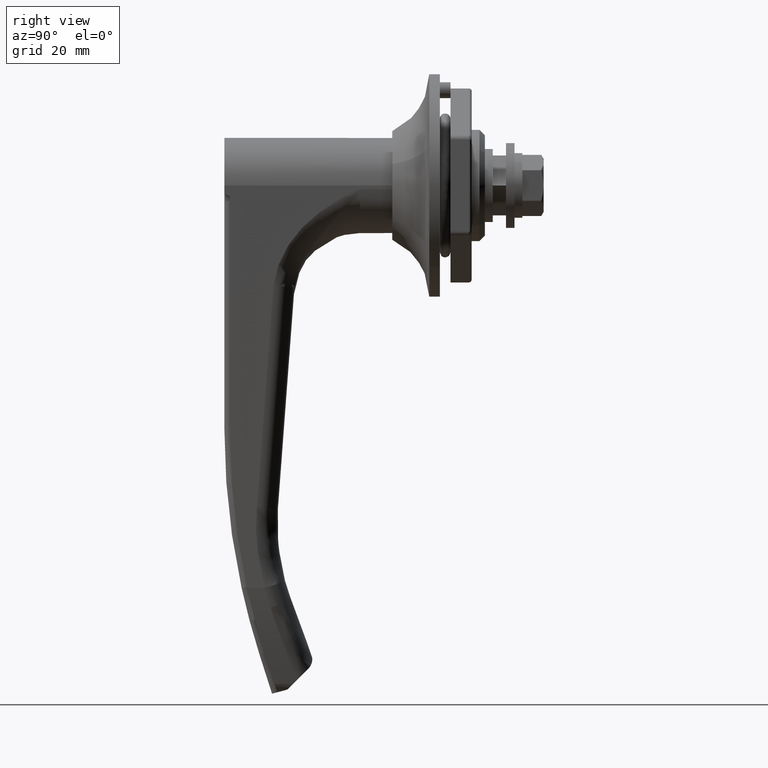
[diagram: clean part render]
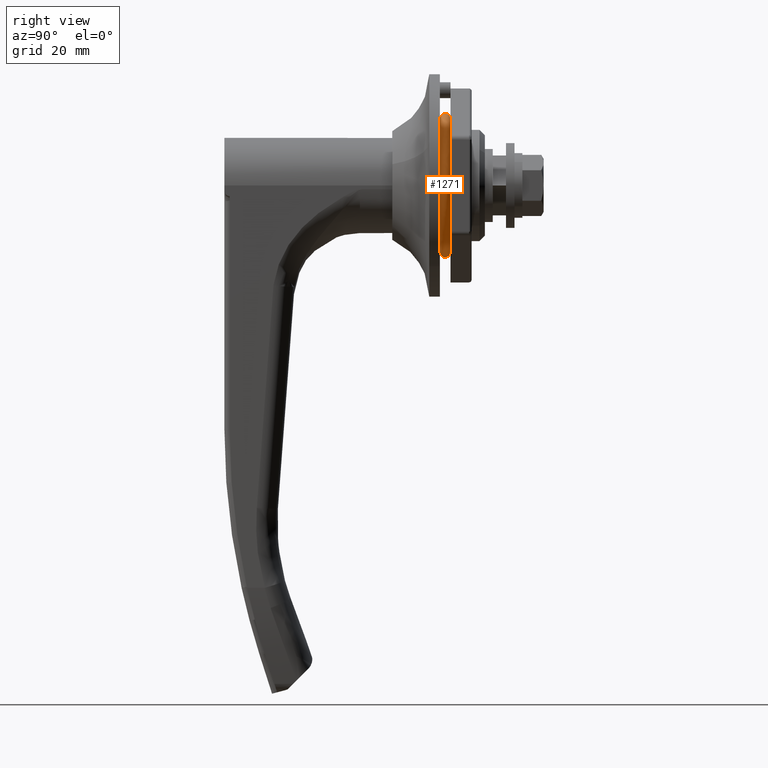
[diagram: same view with one face highlighted and labeled with its STEP entity id]
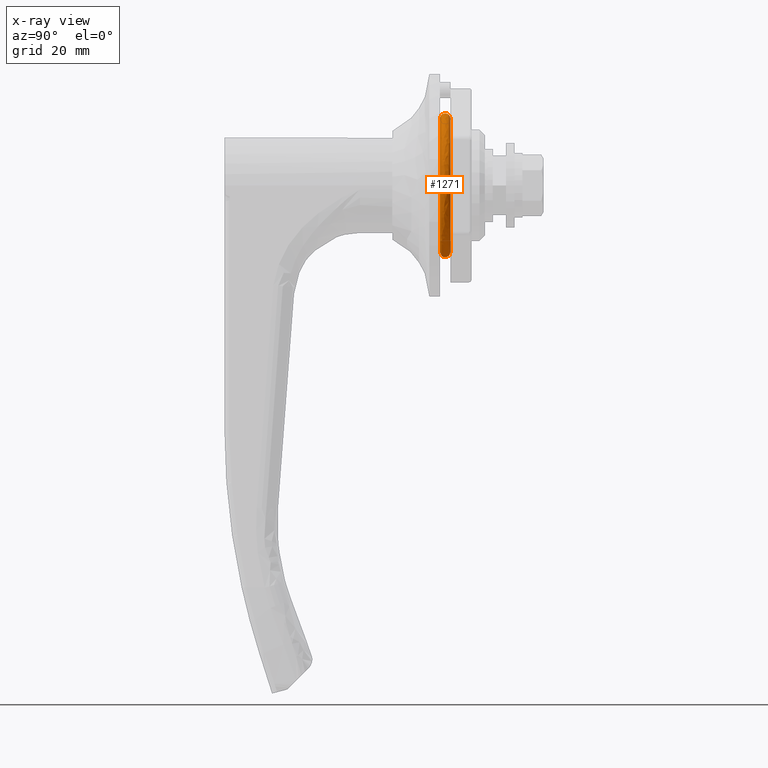
[diagram: x-ray of the same camera — body ghosted, the highlighted face saturated]
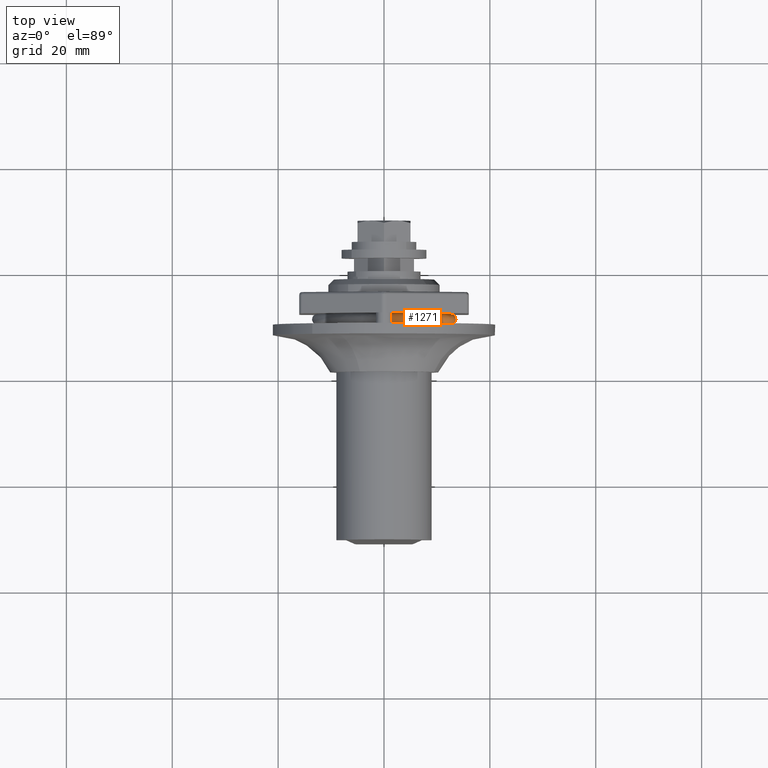
[diagram: same view with one face highlighted and labeled with its STEP entity id]
A machine part, right view. The second image highlights one B-rep face of the part: STEP entity #1271.
The next image is the same camera in x-ray: the body ghosted, the highlighted face saturated — about 0% of this face is hidden behind the body in this view.
A second angle (top view) of the same face is appended — the face is thin or edge-on in the first view.
In plain terms, the highlighted face is a freeform B-spline surface patch.
Its self-contained STEP definition (entity closure, byte-faithful):
#676=CARTESIAN_POINT('',(12.994987437116160,-9.150644916260534,-8.515614928923856));
#677=VERTEX_POINT('',#676);
#678=CARTESIAN_POINT('',(12.994987437106619,-12.499754142508330,-0.078398831916331));
#679=VERTEX_POINT('',#678);
#680=CARTESIAN_POINT('',(12.994987437116160,-9.150644916260534,-8.515614928923856));
#681=CARTESIAN_POINT('',(12.994987437116061,-9.744089311194360,-7.878139290170747));
#682=CARTESIAN_POINT('',(12.994987437115601,-10.592012237429230,-6.750550831147545));
#683=CARTESIAN_POINT('',(12.994987437113760,-11.548394184352130,-4.898048261101545));
#684=CARTESIAN_POINT('',(12.994987437111380,-12.275110189511560,-2.786514612908791));
#685=CARTESIAN_POINT('',(12.994987437108460,-12.493618256507849,-1.094493082620717));
#686=CARTESIAN_POINT('',(12.994987437106619,-12.499754142508330,-0.078398831916331));
#687=B_SPLINE_CURVE_WITH_KNOTS('',3,(#680,#681,#682,#683,#684,#685,#686),.UNSPECIFIED.,.F.,.U.,(4,1,1,1,4),(0.000000058674788,2.612815330729380,4.209534402875947,6.241708751255299,9.289999249466938),.UNSPECIFIED.);
#688=EDGE_CURVE('',#677,#679,#687,.T.);
#690=CARTESIAN_POINT('',(12.994987437060241,-0.157075498516164,12.499013052086459));
#691=VERTEX_POINT('',#690);
#692=CARTESIAN_POINT('',(12.994987437106619,-12.499754142508330,-0.078398831916331));
#693=CARTESIAN_POINT('',(12.994987437104291,-12.508399424778281,1.194854920821184));
#694=CARTESIAN_POINT('',(12.994987437100169,-12.229054750684661,3.080544471326598));
#695=CARTESIAN_POINT('',(12.994987437093100,-11.150754632387560,5.839175106022144));
#696=CARTESIAN_POINT('',(12.994987437086580,-9.784000750706262,7.951528281984242));
#697=CARTESIAN_POINT('',(12.994987437079160,-7.727354658112697,9.947171987933547));
#698=CARTESIAN_POINT('',(12.994987437072419,-5.637625867142281,11.247007701761870));
#699=CARTESIAN_POINT('',(12.994987437066950,-3.056506270211910,12.221186842278209));
#700=CARTESIAN_POINT('',(12.994987437061310,-1.277441337670114,12.485341747210210));
#701=CARTESIAN_POINT('',(12.994987437060241,-0.157075498516164,12.499013052086459));
#702=B_SPLINE_CURVE_WITH_KNOTS('',3,(#692,#693,#694,#695,#696,#697,#698,#699,#700,#701),.UNSPECIFIED.,.F.,.U.,(4,1,1,1,1,1,1,4),(0.000000232486599,3.819588470930647,5.653026645814181,8.861555330350065,11.306011398056070,14.208935130602130,16.195169793192289,19.556395523774722),.UNSPECIFIED.);
#703=EDGE_CURVE('',#679,#691,#702,.T.);
#712=CARTESIAN_POINT('',(12.994987436715180,12.469570919086680,0.871665644899359));
#713=VERTEX_POINT('',#712);
#726=CARTESIAN_POINT('',(12.994987437103740,9.025022238020760,-8.648639985736029));
#727=VERTEX_POINT('',#726);
#728=CARTESIAN_POINT('',(12.994987436715180,12.469570919086680,0.871665644899359));
#729=CARTESIAN_POINT('',(12.994987436755430,12.526454144120709,0.059299950865786));
#730=CARTESIAN_POINT('',(12.994987436835830,12.479086439481160,-1.631091316328710));
#731=CARTESIAN_POINT('',(12.994987436944299,11.894654065734310,-4.129155518809335));
#732=CARTESIAN_POINT('',(12.994987437037651,10.759169937870750,-6.550901867018017));
#733=CARTESIAN_POINT('',(12.994987437084690,9.663729922233600,-7.982390878467725));
#734=CARTESIAN_POINT('',(12.994987437103740,9.025022238020760,-8.648639985736029));
#735=B_SPLINE_CURVE_WITH_KNOTS('',3,(#728,#729,#730,#731,#732,#733,#734),.UNSPECIFIED.,.F.,.U.,(4,1,1,1,4),(0.000000068236854,2.443067400876138,5.049044023217332,7.654948295188760,10.423761856862169),.UNSPECIFIED.);
#736=EDGE_CURVE('',#713,#727,#735,.T.);
#826=CARTESIAN_POINT('',(12.994987437106619,0.0,-12.500000000000000));
#827=VERTEX_POINT('',#826);
#828=CARTESIAN_POINT('',(12.994987437106619,0.0,-12.500000000000000));
#829=CARTESIAN_POINT('',(12.994987437109019,-1.283427586824869,-12.500700464223410));
#830=CARTESIAN_POINT('',(12.994987437112011,-3.207968753880627,-12.200805734801060));
#831=CARTESIAN_POINT('',(12.994987437114711,-5.693205214556762,-11.193589389395720));
#832=CARTESIAN_POINT('',(12.994987437116190,-7.521951352911163,-10.067771663767370));
#833=CARTESIAN_POINT('',(12.994987437116150,-8.640707871655472,-9.063683271652252));
#834=CARTESIAN_POINT('',(12.994987437116160,-9.150644916260534,-8.515614928923856));
#835=B_SPLINE_CURVE_WITH_KNOTS('',3,(#828,#829,#830,#831,#832,#833,#834),.UNSPECIFIED.,.F.,.U.,(4,1,1,1,4),(0.000000063284903,3.850005810361052,5.775004550856745,8.020848254683806,10.266678131332130),.UNSPECIFIED.);
#836=EDGE_CURVE('',#827,#677,#835,.T.);
#860=CARTESIAN_POINT('',(12.994987437103740,9.025022238020760,-8.648639985736029));
#861=CARTESIAN_POINT('',(12.994987437124470,8.334780139234768,-9.369306722629576));
#862=CARTESIAN_POINT('',(12.994987437146500,7.189371459664768,-10.308227878719590));
#863=CARTESIAN_POINT('',(12.994987437159169,5.307573108205863,-11.361971400264689));
#864=CARTESIAN_POINT('',(12.994987437155890,3.098376935829204,-12.223728889088610));
#865=CARTESIAN_POINT('',(12.994987437131140,1.208009329062590,-12.500513258094429));
#866=CARTESIAN_POINT('',(12.994987437106619,0.0,-12.500000000000000));
#867=B_SPLINE_CURVE_WITH_KNOTS('',3,(#860,#861,#862,#863,#864,#865,#866),.UNSPECIFIED.,.F.,.U.,(4,1,1,1,4),(0.000000067144409,2.993608350346575,4.411636502924328,6.459853125716885,10.083706345304419),.UNSPECIFIED.);
#868=EDGE_CURVE('',#727,#827,#867,.T.);
#895=CARTESIAN_POINT('',(12.994987437261820,-9.297055717771748,-8.651864247714347));
#896=VERTEX_POINT('',#895);
#897=CARTESIAN_POINT('',(12.994987437106619,-12.699750234037481,-0.079649187472112));
#898=VERTEX_POINT('',#897);
#899=CARTESIAN_POINT('',(12.994987437261820,-9.297055717771748,-8.651864247714347));
#900=CARTESIAN_POINT('',(12.994987437260450,-9.866415034811697,-8.040124123614920));
#901=CARTESIAN_POINT('',(12.994987437249550,-11.003657219637439,-6.546608494697702));
#902=CARTESIAN_POINT('',(12.994987437202800,-12.325506235250440,-3.665770615877390));
#903=CARTESIAN_POINT('',(12.994987437144561,-12.692279958018370,-1.357812511614007));
#904=CARTESIAN_POINT('',(12.994987437106619,-12.699750234037481,-0.079649187472112));
#905=B_SPLINE_CURVE_WITH_KNOTS('',3,(#899,#900,#901,#902,#903,#904),.UNSPECIFIED.,.F.,.U.,(4,1,1,4),(0.000000052186937,2.507141345663507,5.604181969448972,9.438642553201436),.UNSPECIFIED.);
#906=EDGE_CURVE('',#896,#898,#905,.T.);
#971=CARTESIAN_POINT('',(12.994987437088810,9.169422774209368,-8.787018037426307));
#972=VERTEX_POINT('',#971);
#978=CARTESIAN_POINT('',(12.994987434694490,12.669084081656560,0.885612297524763));
#979=VERTEX_POINT('',#978);
#980=CARTESIAN_POINT('',(12.994987434694490,12.669084081656560,0.885612297524763));
#981=CARTESIAN_POINT('',(12.994987434975570,12.734642578884101,-0.049801336931608));
#982=CARTESIAN_POINT('',(12.994987435468691,12.663899540554359,-1.768775035714479));
#983=CARTESIAN_POINT('',(12.994987436157629,12.011215760014490,-4.403199091633447));
#984=CARTESIAN_POINT('',(12.994987436703671,10.872495019571410,-6.752019433834186));
#985=CARTESIAN_POINT('',(12.994987436984630,9.741932041875625,-8.189700824723630));
#986=CARTESIAN_POINT('',(12.994987437088810,9.169422774209368,-8.787018037426307));
#987=B_SPLINE_CURVE_WITH_KNOTS('',3,(#980,#981,#982,#983,#984,#985,#986),.UNSPECIFIED.,.F.,.U.,(4,1,1,1,4),(0.000000069329491,2.813114581570401,5.129828606470262,8.108385445168270,10.590541796525191),.UNSPECIFIED.);
#988=EDGE_CURVE('',#979,#972,#987,.T.);
#1006=CARTESIAN_POINT('',(12.994987436351989,-0.159588706744679,12.698997268894731));
#1007=VERTEX_POINT('',#1006);
#1013=CARTESIAN_POINT('',(12.994987437106619,-12.699750234037481,-0.079649187472112));
#1014=CARTESIAN_POINT('',(12.994987437065170,-12.709433956627461,1.317507072373915));
#1015=CARTESIAN_POINT('',(12.994987436989661,-12.359758408076630,3.492317793733310));
#1016=CARTESIAN_POINT('',(12.994987436883481,-11.269057777522940,5.964407226541289));
#1017=CARTESIAN_POINT('',(12.994987436797960,-10.153245194939840,7.712142674718781));
#1018=CARTESIAN_POINT('',(12.994987436697620,-8.575673101194202,9.507765389088609));
#1019=CARTESIAN_POINT('',(12.994987436575650,-6.214723609110276,11.228606638223241));
#1020=CARTESIAN_POINT('',(12.994987436453309,-3.260625140242420,12.405705877120910));
#1021=CARTESIAN_POINT('',(12.994987436382729,-1.194369252939878,12.686205520085061));
#1022=CARTESIAN_POINT('',(12.994987436351989,-0.159588706744679,12.698997268894731));
#1023=B_SPLINE_CURVE_WITH_KNOTS('',3,(#1013,#1014,#1015,#1016,#1017,#1018,#1019,#1020,#1021,#1022),.UNSPECIFIED.,.F.,.U.,(4,1,1,1,1,1,1,4),(0.000000236204528,4.191178432377363,6.519642109665863,8.071959199271667,10.400290109113820,13.660133730059011,16.764735485847929,19.869293832309900),.UNSPECIFIED.);
#1024=EDGE_CURVE('',#898,#1007,#1023,.T.);
#1047=CARTESIAN_POINT('',(12.994987437106619,0.0,-12.699999999999999));
#1048=VERTEX_POINT('',#1047);
#1049=CARTESIAN_POINT('',(12.994987437106619,0.0,-12.699999999999999));
#1050=CARTESIAN_POINT('',(12.994987437134080,-0.923579025636250,-12.700161883979650));
#1051=CARTESIAN_POINT('',(12.994987437184321,-2.824973181010184,-12.491690721169050));
#1052=CARTESIAN_POINT('',(12.994987437234361,-5.408749589459245,-11.596294456188790));
#1053=CARTESIAN_POINT('',(12.994987437259629,-7.601699537230034,-10.265282739452070));
#1054=CARTESIAN_POINT('',(12.994987437263150,-8.778957615099474,-9.208697293546148));
#1055=CARTESIAN_POINT('',(12.994987437261820,-9.297055717771748,-8.651864247714347));
#1056=B_SPLINE_CURVE_WITH_KNOTS('',3,(#1049,#1050,#1051,#1052,#1053,#1054,#1055),.UNSPECIFIED.,.F.,.U.,(4,1,1,1,4),(0.000000064298858,2.770721777833736,5.704394049561858,8.149182380741502,10.430945690529491),.UNSPECIFIED.);
#1057=EDGE_CURVE('',#1048,#896,#1056,.T.);
#1059=CARTESIAN_POINT('',(12.994987437088810,9.169422774209368,-8.787018037426307));
#1060=CARTESIAN_POINT('',(12.994987437216560,8.468123962890418,-9.519194482842019));
#1061=CARTESIAN_POINT('',(12.994987437386230,7.013536493409459,-10.711748133271829));
#1062=CARTESIAN_POINT('',(12.994987437442250,4.714157608498239,-11.869280828953571));
#1063=CARTESIAN_POINT('',(12.994987437355270,2.401133191063305,-12.543347757068430));
#1064=CARTESIAN_POINT('',(12.994987437211460,0.853756843644613,-12.700122879366450));
#1065=CARTESIAN_POINT('',(12.994987437106619,0.0,-12.699999999999999));
#1066=B_SPLINE_CURVE_WITH_KNOTS('',3,(#1059,#1060,#1061,#1062,#1063,#1064,#1065),.UNSPECIFIED.,.F.,.U.,(4,1,1,1,4),(0.000000068219828,3.041506160736708,5.602737809084523,7.683784446156250,10.245045905468350),.UNSPECIFIED.);
#1067=EDGE_CURVE('',#972,#1048,#1066,.T.);
#1096=CARTESIAN_POINT('',(12.997299116378880,12.642595768834807,0.883760673039957));
#1097=CARTESIAN_POINT('',(12.997299116378880,12.667888619607941,0.521935013762415));
#1098=CARTESIAN_POINT('',(12.997299116378880,12.672446430471460,0.159255041373544));
#1099=CARTESIAN_POINT('',(12.997299116378878,12.831701471845006,-12.513191389097919));
#1100=CARTESIAN_POINT('',(12.997299116378880,0.159255041373545,-12.672446430471460));
#1101=CARTESIAN_POINT('',(12.997299116378878,-12.513191389097916,-12.831701471845006));
#1102=CARTESIAN_POINT('',(12.997299116378880,-12.672446430471460,-0.159255041373545));
#1103=CARTESIAN_POINT('',(12.997299116378878,-12.831701471845008,12.513191389097916));
#1104=CARTESIAN_POINT('',(12.997299116378880,-0.159255041373546,12.672446430471460));
#1105=CARTESIAN_POINT('',(12.926503284139748,13.601554972924001,0.950795200372776));
#1106=CARTESIAN_POINT('',(12.926503284139748,13.628766323069424,0.561524540670940));
#1107=CARTESIAN_POINT('',(12.926503284139750,13.633669850489730,0.171334766970658));
#1108=CARTESIAN_POINT('',(12.926503284139750,13.805004617460387,-13.462335083519068));
#1109=CARTESIAN_POINT('',(12.926503284139750,0.171334766970659,-13.633669850489730));
#1110=CARTESIAN_POINT('',(12.926503284139750,-13.462335083519068,-13.805004617460387));
#1111=CARTESIAN_POINT('',(12.926503284139750,-13.633669850489730,-0.171334766970660));
#1112=CARTESIAN_POINT('',(12.926503284139750,-13.805004617460389,13.462335083519067));
#1113=CARTESIAN_POINT('',(12.926503284139750,-0.171334766970661,13.633669850489730));
#1114=CARTESIAN_POINT('',(11.963251642069878,13.566219359472125,0.948325120169509));
#1115=CARTESIAN_POINT('',(11.963251642069876,13.593360016983354,0.560065750543459));
#1116=CARTESIAN_POINT('',(11.963251642069880,13.598250805481539,0.170889654694261));
#1117=CARTESIAN_POINT('',(11.963251642069876,13.769140460175802,-13.427361150787277));
#1118=CARTESIAN_POINT('',(11.963251642069880,0.170889654694262,-13.598250805481539));
#1119=CARTESIAN_POINT('',(11.963251642069876,-13.427361150787277,-13.769140460175802));
#1120=CARTESIAN_POINT('',(11.963251642069880,-13.598250805481539,-0.170889654694263));
#1121=CARTESIAN_POINT('',(11.963251642069876,-13.769140460175802,13.427361150787275));
#1122=CARTESIAN_POINT('',(11.963251642069880,-0.170889654694264,13.598250805481539));
#1123=CARTESIAN_POINT('',(11.0,13.530883746020260,0.945855039966242));
#1124=CARTESIAN_POINT('',(11.0,13.557953710897282,0.558606960415979));
#1125=CARTESIAN_POINT('',(11.0,13.562831760473351,0.170444542417864));
#1126=CARTESIAN_POINT('',(11.0,13.733276302891214,-13.392387218055488));
#1127=CARTESIAN_POINT('',(11.0,0.170444542417864,-13.562831760473351));
#1128=CARTESIAN_POINT('',(11.0,-13.392387218055488,-13.733276302891218));
#1129=CARTESIAN_POINT('',(11.0,-13.562831760473351,-0.170444542417865));
#1130=CARTESIAN_POINT('',(11.0,-13.733276302891218,13.392387218055486));
#1131=CARTESIAN_POINT('',(11.0,-0.170444542417866,13.562831760473351));
#1132=CARTESIAN_POINT('',(11.000000000000005,12.569327490389451,0.878638969850572));
#1133=CARTESIAN_POINT('',(11.0,12.594473760217740,0.518910217223955));
#1134=CARTESIAN_POINT('',(11.0,12.599005156968079,0.158332102530245));
#1135=CARTESIAN_POINT('',(11.0,12.757337259498323,-12.440673054437834));
#1136=CARTESIAN_POINT('',(11.0,0.158332102530246,-12.599005156968079));
#1137=CARTESIAN_POINT('',(11.0,-12.440673054437834,-12.757337259498325));
#1138=CARTESIAN_POINT('',(11.0,-12.599005156968079,-0.158332102530246));
#1139=CARTESIAN_POINT('',(11.0,-12.757337259498325,12.440673054437831));
#1140=CARTESIAN_POINT('',(11.0,-0.158332102530247,12.599005156968079));
#1141=CARTESIAN_POINT('',(11.0,11.607771234758635,0.811422899734903));
#1142=CARTESIAN_POINT('',(11.0,11.630993809538191,0.479213474031931));
#1143=CARTESIAN_POINT('',(11.0,11.635178553462806,0.146219662642626));
#1144=CARTESIAN_POINT('',(11.0,11.781398216105433,-11.488958890820179));
#1145=CARTESIAN_POINT('',(11.0,0.146219662642627,-11.635178553462806));
#1146=CARTESIAN_POINT('',(11.0,-11.488958890820179,-11.781398216105433));
#1147=CARTESIAN_POINT('',(11.0,-11.635178553462806,-0.146219662642628));
#1148=CARTESIAN_POINT('',(11.0,-11.781398216105433,11.488958890820179));
#1149=CARTESIAN_POINT('',(11.0,-0.146219662642628,11.635178553462806));
#1150=CARTESIAN_POINT('',(11.963251642069878,11.572435621306767,0.808952819531636));
#1151=CARTESIAN_POINT('',(11.963251642069876,11.595587503452125,0.477754683904450));
#1152=CARTESIAN_POINT('',(11.963251642069880,11.599759508454619,0.145774550366229));
#1153=CARTESIAN_POINT('',(11.963251642069876,11.745534058820846,-11.453984958088389));
#1154=CARTESIAN_POINT('',(11.963251642069880,0.145774550366230,-11.599759508454619));
#1155=CARTESIAN_POINT('',(11.963251642069876,-11.453984958088387,-11.745534058820846));
#1156=CARTESIAN_POINT('',(11.963251642069880,-11.599759508454619,-0.145774550366230));
#1157=CARTESIAN_POINT('',(11.963251642069876,-11.745534058820850,11.453984958088387));
#1158=CARTESIAN_POINT('',(11.963251642069880,-0.145774550366231,11.599759508454619));
#1159=CARTESIAN_POINT('',(12.926503284139748,11.537100007854891,0.806482739328369));
#1160=CARTESIAN_POINT('',(12.926503284139748,11.560181197366049,0.476295893776969));
#1161=CARTESIAN_POINT('',(12.926503284139750,11.564340463446429,0.145329438089832));
#1162=CARTESIAN_POINT('',(12.926503284139750,11.709669901536261,-11.419011025356598));
#1163=CARTESIAN_POINT('',(12.926503284139750,0.145329438089832,-11.564340463446429));
#1164=CARTESIAN_POINT('',(12.926503284139750,-11.419011025356594,-11.709669901536261));
#1165=CARTESIAN_POINT('',(12.926503284139750,-11.564340463446429,-0.145329438089833));
#1166=CARTESIAN_POINT('',(12.926503284139750,-11.709669901536262,11.419011025356594));
#1167=CARTESIAN_POINT('',(12.926503284139750,-0.145329438089834,11.564340463446429));
#1168=CARTESIAN_POINT('',(12.997299116378880,12.496059211944083,0.873517266661187));
#1169=CARTESIAN_POINT('',(12.997299116378880,12.521058900827528,0.515885420685494));
#1170=CARTESIAN_POINT('',(12.997299116378880,12.525563883464701,0.157409163686946));
#1171=CARTESIAN_POINT('',(12.997299116378878,12.682973047151641,-12.368154719777747));
#1172=CARTESIAN_POINT('',(12.997299116378880,0.157409163686947,-12.525563883464701));
#1173=CARTESIAN_POINT('',(12.997299116378878,-12.368154719777747,-12.682973047151641));
#1174=CARTESIAN_POINT('',(12.997299116378880,-12.525563883464701,-0.157409163686947));
#1175=CARTESIAN_POINT('',(12.997299116378878,-12.682973047151641,12.368154719777747));
#1176=CARTESIAN_POINT('',(12.997299116378880,-0.157409163686948,12.525563883464701));
#1184=(BOUNDED_SURFACE()B_SPLINE_SURFACE(2,2,((#1096,#1105,#1114,#1123,#1132,#1141,#1150,#1159,#1168),(#1097,#1106,#1115,#1124,#1133,#1142,#1151,#1160,#1169),(#1098,#1107,#1116,#1125,#1134,#1143,#1152,#1161,#1170),(#1099,#1108,#1117,#1126,#1135,#1144,#1153,#1162,#1171),(#1100,#1109,#1118,#1127,#1136,#1145,#1154,#1163,#1172),(#1101,#1110,#1119,#1128,#1137,#1146,#1155,#1164,#1173),(#1102,#1111,#1120,#1129,#1138,#1147,#1156,#1165,#1174),(#1103,#1112,#1121,#1130,#1139,#1148,#1157,#1166,#1175),(#1104,#1113,#1122,#1131,#1140,#1149,#1158,#1167,#1176)),.UNSPECIFIED.,.F.,.F.,.U.)B_SPLINE_SURFACE_WITH_KNOTS((3,2,2,2,3),(3,2,2,2,3),(0.0,0.901283946900627,23.433382619416282,45.965481291931930,68.497579964447581),(0.0,1.613953259448066,3.227906518896132,4.841859778344198,6.455813037792265),.UNSPECIFIED.)GEOMETRIC_REPRESENTATION_ITEM()RATIONAL_B_SPLINE_SURFACE(((0.977505800795127,0.703786648429616,0.977505800795127,0.703786648429616,0.977505800795127,0.703786648429616,0.977505800795127,0.703786648429616,0.977505800795127),(0.988284271247462,0.711546953881181,0.988284271247462,0.711546953881181,0.988284271247462,0.711546953881181,0.988284271247462,0.711546953881181,0.988284271247462),(1.0,0.719982068502447,1.0,0.719982068502447,1.0,0.719982068502447,1.0,0.719982068502447,1.0),(0.707106781186548,0.509104202970798,0.707106781186548,0.509104202970798,0.707106781186548,0.509104202970798,0.707106781186548,0.509104202970798,0.707106781186548),(1.0,0.719982068502447,1.0,0.719982068502447,1.0,0.719982068502447,1.0,0.719982068502447,1.0),(0.707106781186548,0.509104202970798,0.707106781186548,0.509104202970798,0.707106781186548,0.509104202970798,0.707106781186548,0.509104202970798,0.707106781186548),(1.0,0.719982068502447,1.0,0.719982068502447,1.0,0.719982068502447,1.0,0.719982068502447,1.0),(0.707106781186548,0.509104202970798,0.707106781186548,0.509104202970798,0.707106781186548,0.509104202970798,0.707106781186548,0.509104202970798,0.707106781186548),(1.0,0.719982068502447,1.0,0.719982068502447,1.0,0.719982068502447,1.0,0.719982068502447,1.0)))REPRESENTATION_ITEM('')SURFACE());
#1185=ORIENTED_EDGE('',*,*,#868,.F.);
#1186=ORIENTED_EDGE('',*,*,#736,.F.);
#1187=CARTESIAN_POINT('',(11.471373961527171,11.722539056351250,0.819445562889572));
#1188=VERTEX_POINT('',#1187);
#1189=CARTESIAN_POINT('',(11.471373961527171,11.722539056351250,0.819445562889572));
#1190=CARTESIAN_POINT('',(11.578889460464371,11.655603818991340,0.814766560907863));
#1191=CARTESIAN_POINT('',(11.789719192090811,11.575006455257180,0.809132529581988));
#1192=CARTESIAN_POINT('',(12.141546241400111,11.562939705842100,0.808289022567764));
#1193=CARTESIAN_POINT('',(12.501340733610830,11.673134827173969,0.815992038423068));
#1194=CARTESIAN_POINT('',(12.854212643572961,11.975834009361220,0.837151746444852));
#1195=CARTESIAN_POINT('',(12.977494869830410,12.291251370052271,0.859200498614041));
#1196=CARTESIAN_POINT('',(12.994987436715180,12.469570919086680,0.871665644899359));
#1197=B_SPLINE_CURVE_WITH_KNOTS('',3,(#1189,#1190,#1191,#1192,#1193,#1194,#1195,#1196),.UNSPECIFIED.,.F.,.U.,(4,1,1,1,1,4),(0.000001109853758,0.380170507079798,0.665348150246937,1.045430726294467,1.489087546051735,2.027694809307024),.UNSPECIFIED.);
#1198=EDGE_CURVE('',#1188,#713,#1197,.T.);
#1199=ORIENTED_EDGE('',*,*,#1198,.F.);
#1200=CARTESIAN_POINT('',(11.471373532224691,13.416115657729330,0.937832358168448));
#1201=VERTEX_POINT('',#1200);
#1202=CARTESIAN_POINT('',(11.471373532224691,13.416115657729330,0.937832358168448));
#1203=CARTESIAN_POINT('',(11.363748652897099,13.349367845212260,0.933166457756307));
#1204=CARTESIAN_POINT('',(11.174531918129089,13.174327148565810,0.920930514392296));
#1205=CARTESIAN_POINT('',(10.989621219450569,12.786879792843690,0.893846619280761));
#1206=CARTESIAN_POINT('',(10.989538295955860,12.329962348456529,0.861906527581273));
#1207=CARTESIAN_POINT('',(11.187940114028629,11.946118583514041,0.835074536095263));
#1208=CARTESIAN_POINT('',(11.381728273829291,11.778191479497259,0.823335857487583));
#1209=CARTESIAN_POINT('',(11.471373961527171,11.722539056351250,0.819445562889572));
#1210=B_SPLINE_CURVE_WITH_KNOTS('',3,(#1202,#1203,#1204,#1205,#1206,#1207,#1208,#1209),.UNSPECIFIED.,.F.,.U.,(4,1,1,1,1,4),(0.000001109906147,0.380174223096701,0.760445927218124,1.267272518653019,1.710924923390486,2.027714631853778),.UNSPECIFIED.);
#1211=EDGE_CURVE('',#1201,#1188,#1210,.T.);
#1212=ORIENTED_EDGE('',*,*,#1211,.F.);
#1213=CARTESIAN_POINT('',(12.994987434694490,12.669084081656560,0.885612297524763));
#1214=CARTESIAN_POINT('',(12.984470926159331,12.773899222871570,0.892939234261758));
#1215=CARTESIAN_POINT('',(12.927010260853461,12.990470575782339,0.908078312278123));
#1216=CARTESIAN_POINT('',(12.729874646590529,13.283486483486900,0.928561125981827));
#1217=CARTESIAN_POINT('',(12.387484851300190,13.525309608689870,0.945465389091879));
#1218=CARTESIAN_POINT('',(11.925585268566881,13.605098342981060,0.951042894216208));
#1219=CARTESIAN_POINT('',(11.605735476904570,13.499849788344900,0.943685660251688));
#1220=CARTESIAN_POINT('',(11.471373532224691,13.416115657729330,0.937832358168448));
#1221=B_SPLINE_CURVE_WITH_KNOTS('',3,(#1213,#1214,#1215,#1216,#1217,#1218,#1219,#1220),.UNSPECIFIED.,.F.,.U.,(4,1,1,1,1,4),(0.000001109854495,0.316796644711305,0.665348309588113,1.045430976611582,1.552455600445168,2.027695294904185),.UNSPECIFIED.);
#1222=EDGE_CURVE('',#979,#1201,#1221,.T.);
#1223=ORIENTED_EDGE('',*,*,#1222,.F.);
#1224=ORIENTED_EDGE('',*,*,#988,.T.);
#1225=ORIENTED_EDGE('',*,*,#1067,.T.);
#1226=ORIENTED_EDGE('',*,*,#1057,.T.);
#1227=ORIENTED_EDGE('',*,*,#906,.T.);
#1228=ORIENTED_EDGE('',*,*,#1024,.T.);
#1229=CARTESIAN_POINT('',(11.471373542243720,-0.168998842816919,13.447792697411330));
#1230=VERTEX_POINT('',#1229);
#1231=CARTESIAN_POINT('',(12.994987436351989,-0.159588706744679,12.698997268894731));
#1232=CARTESIAN_POINT('',(12.982423799817520,-0.161173353747302,12.825092833249750));
#1233=CARTESIAN_POINT('',(12.908410487379991,-0.164279873153312,13.072288781284159));
#1234=CARTESIAN_POINT('',(12.641328587482800,-0.168517912836653,13.409523513555760));
#1235=CARTESIAN_POINT('',(12.279409183665660,-0.170753665032859,13.587429657628361));
#1236=CARTESIAN_POINT('',(11.853301516696989,-0.171076209702707,13.613095598255020));
#1237=CARTESIAN_POINT('',(11.605731269761471,-0.170054717893403,13.531812142869709));
#1238=CARTESIAN_POINT('',(11.471373542243720,-0.168998842816919,13.447792697411330));
#1239=B_SPLINE_CURVE_WITH_KNOTS('',3,(#1231,#1232,#1233,#1234,#1235,#1236,#1237,#1238),.UNSPECIFIED.,.F.,.U.,(4,1,1,1,1,4),(0.000001109854524,0.380170599006161,0.760438675992929,1.267260437597602,1.552455604099356,2.027695299676767),.UNSPECIFIED.);
#1240=EDGE_CURVE('',#1007,#1230,#1239,.T.);
#1241=ORIENTED_EDGE('',*,*,#1240,.T.);
#1242=CARTESIAN_POINT('',(11.471373958263721,-0.147665358987992,11.750217357467850));
#1243=VERTEX_POINT('',#1242);
#1244=CARTESIAN_POINT('',(11.471373542243720,-0.168998842816919,13.447792697411330));
#1245=CARTESIAN_POINT('',(11.363772546850750,-0.168157951833015,13.380880242490530));
#1246=CARTESIAN_POINT('',(11.158597027599340,-0.165769877381482,13.190853321064600));
#1247=CARTESIAN_POINT('',(11.011346488493141,-0.161534064648760,12.853795798435950));
#1248=CARTESIAN_POINT('',(10.987789156467050,-0.156859759258158,12.481845974343500));
#1249=CARTESIAN_POINT('',(11.096750542849881,-0.151895282333267,12.086806247399091));
#1250=CARTESIAN_POINT('',(11.318638217574330,-0.148853261475030,11.844742659423151));
#1251=CARTESIAN_POINT('',(11.471373958263721,-0.147665358987992,11.750217357467850));
#1252=B_SPLINE_CURVE_WITH_KNOTS('',3,(#1244,#1245,#1246,#1247,#1248,#1249,#1250,#1251),.UNSPECIFIED.,.F.,.U.,(4,1,1,1,1,4),(0.000001109909083,0.380174224591310,0.823816442044495,1.077190119344131,1.489102109065345,2.027714639813229),.UNSPECIFIED.);
#1253=EDGE_CURVE('',#1230,#1243,#1252,.T.);
#1254=ORIENTED_EDGE('',*,*,#1253,.T.);
#1255=CARTESIAN_POINT('',(11.471373958263721,-0.147665358987992,11.750217357467850));
#1256=CARTESIAN_POINT('',(11.560986765934880,-0.146963588352978,11.694375165408269));
#1257=CARTESIAN_POINT('',(11.777834849347631,-0.145815974861474,11.603055794784140));
#1258=CARTESIAN_POINT('',(12.164439679986399,-0.145570715297119,11.583539688602450));
#1259=CARTESIAN_POINT('',(12.538951295904671,-0.147351610325300,11.725251352967760));
#1260=CARTESIAN_POINT('',(12.866037091911030,-0.151242889490071,12.034893208927381));
#1261=CARTESIAN_POINT('',(12.977507094305761,-0.154828609186206,12.320220693873530));
#1262=CARTESIAN_POINT('',(12.994987437060241,-0.157075498516164,12.499013052086459));
#1263=B_SPLINE_CURVE_WITH_KNOTS('',3,(#1255,#1256,#1257,#1258,#1259,#1260,#1261,#1262),.UNSPECIFIED.,.F.,.U.,(4,1,1,1,1,4),(0.000001109853146,0.316796570001403,0.697063453682544,1.140529133341813,1.489087551409487,2.027694816603034),.UNSPECIFIED.);
#1264=EDGE_CURVE('',#1243,#691,#1263,.T.);
#1265=ORIENTED_EDGE('',*,*,#1264,.T.);
#1266=ORIENTED_EDGE('',*,*,#703,.F.);
#1267=ORIENTED_EDGE('',*,*,#688,.F.);
#1268=ORIENTED_EDGE('',*,*,#836,.F.);
#1269=EDGE_LOOP('',(#1185,#1186,#1199,#1212,#1223,#1224,#1225,#1226,#1227,#1228,#1241,#1254,#1265,#1266,#1267,#1268));
#1270=FACE_OUTER_BOUND('',#1269,.T.);
#1271=ADVANCED_FACE('',(#1270),#1184,.T.);